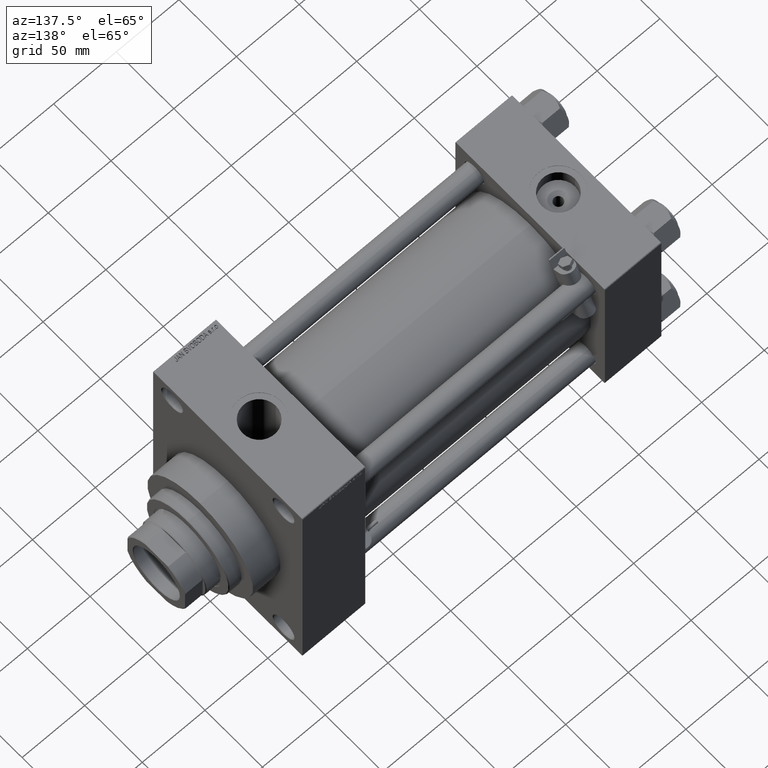
[diagram: clean part render]
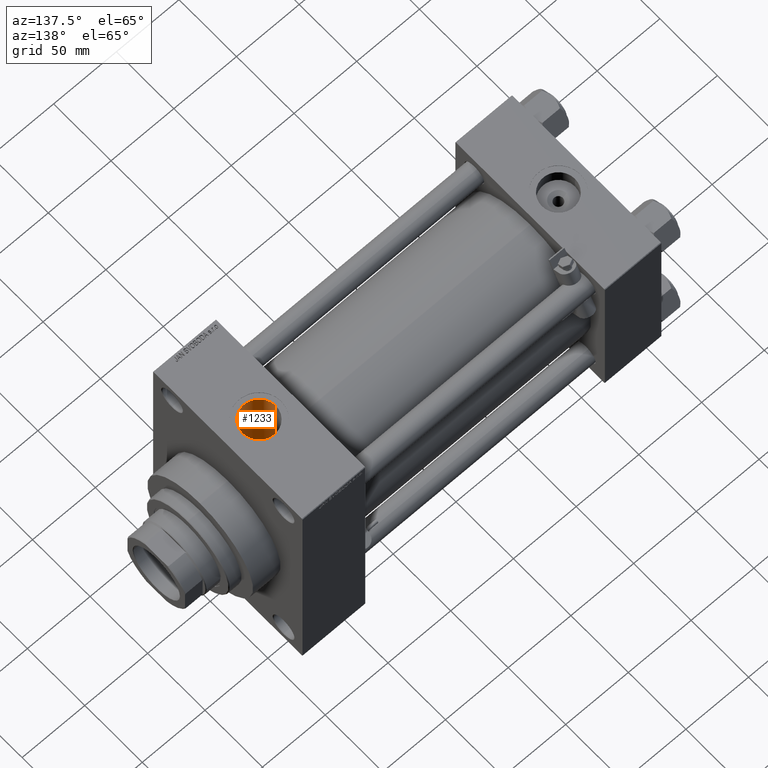
[diagram: same view with one face highlighted and labeled with its STEP entity id]
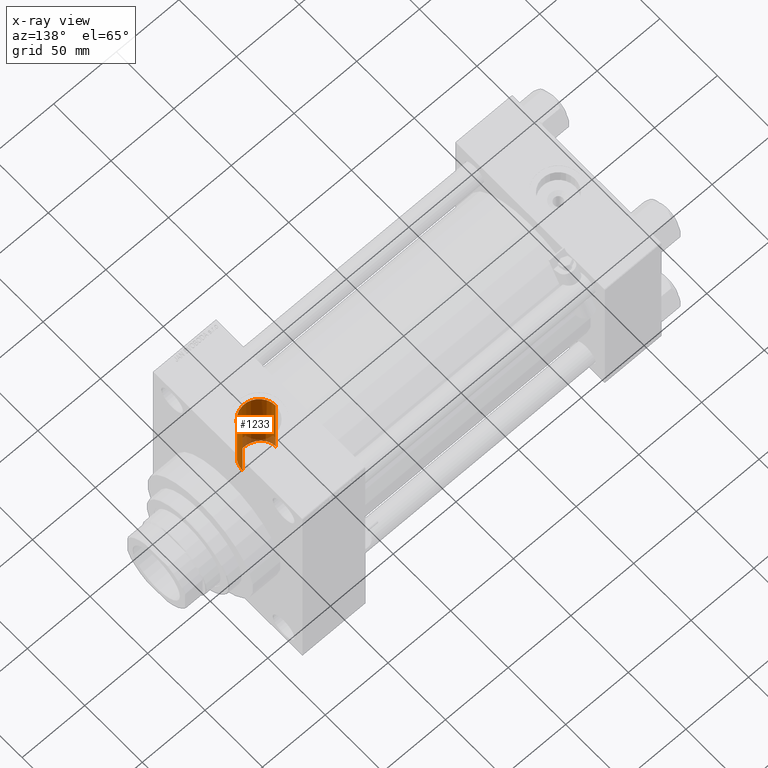
[diagram: x-ray of the same camera — body ghosted, the highlighted face saturated]
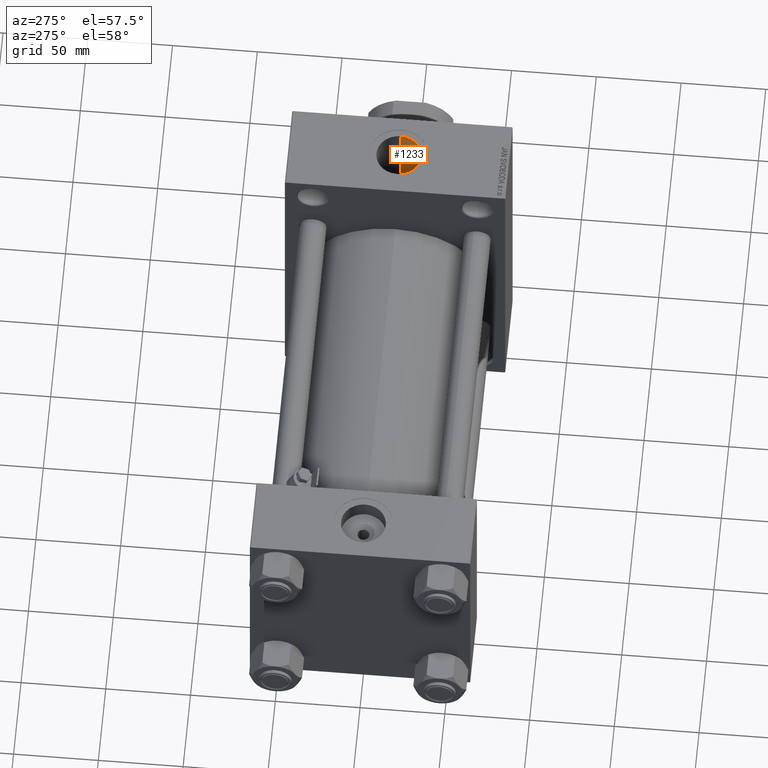
[diagram: same view with one face highlighted and labeled with its STEP entity id]
A machine part, auxiliary view. The second image highlights one B-rep face of the part: STEP entity #1233.
The next image is the same camera in x-ray: the body ghosted, the highlighted face saturated — about 10% of this face is hidden behind the body in this view.
A second angle (auxiliary view) of the same face is appended — the face is thin or edge-on in the first view.
In plain terms, the highlighted cylindrical surface (edge-blend (fillet) strip) has radius 13.22 mm, axis along (0, 0, -1).
Its self-contained STEP definition (entity closure, byte-faithful):
#163 = CARTESIAN_POINT ( 'NONE',  ( 253.8755652418721525, -11.18215487821174925, 36.32301804256497491 ) ) ;
#414 = CARTESIAN_POINT ( 'NONE',  ( 257.6246063200817389, -12.79204261344249005, 35.78252008287736174 ) ) ;
#1049 = EDGE_CURVE ( 'NONE', #10241, #21354, #22433, .T. ) ;
#1100 = AXIS2_PLACEMENT_3D ( 'NONE', #29241, #26264, #33428 ) ;
#1233 = ADVANCED_FACE ( 'NONE', ( #6767 ), #29478, .F. ) ;
#1682 = DIRECTION ( 'NONE',  ( 0.000000000000000000, 0.000000000000000000, -1.000000000000000000 ) ) ;
#2470 = CARTESIAN_POINT ( 'NONE',  ( 272.0015928053663288, -7.364010740346978778, 42.11487085516266404 ) ) ;
#3432 = CARTESIAN_POINT ( 'NONE',  ( 273.4260137807292494, -4.526382623994734011, 42.51103856060491637 ) ) ;
#3622 = VERTEX_POINT ( 'NONE', #22587 ) ;
#3941 = ORIENTED_EDGE ( 'NONE', *, *, #28686, .T. ) ;
#4098 = CARTESIAN_POINT ( 'NONE',  ( 258.1213861529209908, -12.91299555985391834, 35.73883275200965670 ) ) ;
#4350 = CARTESIAN_POINT ( 'NONE',  ( 259.1333413548220506, -13.09010442784176043, 35.67422447380826611 ) ) ;
#4588 = CARTESIAN_POINT ( 'NONE',  ( 247.9297342754260285, -2.050085931408931916, 37.94812610307854328 ) ) ;
#5367 = LINE ( 'NONE', #35494, #29458 ) ;
#6408 = CARTESIAN_POINT ( 'NONE',  ( 273.0198534454124228, -5.515287097378180015, 42.39402133541481987 ) ) ;
#6651 = CARTESIAN_POINT ( 'NONE',  ( 273.2993960643596552, -4.860054019011688986, 42.47412520213219267 ) ) ;
#6767 = FACE_OUTER_BOUND ( 'NONE', #36648, .T. ) ;
#7319 = CARTESIAN_POINT ( 'NONE',  ( 259.9061800254221453, -13.17721531947966440, 35.64212817518318133 ) ) ;
#7572 = CARTESIAN_POINT ( 'NONE',  ( 250.2318264884937946, -7.685914564966211948, 37.21712017253235416 ) ) ;
#7788 = ORIENTED_EDGE ( 'NONE', *, *, #43885, .T. ) ;
#7857 = CARTESIAN_POINT ( 'NONE',  ( 247.7800000000000296, 0.000000000000000000, 117.7999999999999545 ) ) ;
#8051 = CARTESIAN_POINT ( 'NONE',  ( 262.2184681352998155, -13.17368919937491967, 35.64343931497821671 ) ) ;
#8301 = CARTESIAN_POINT ( 'NONE',  ( 260.6814230918163844, -13.22630302104230182, 35.62395438639611456 ) ) ;
#10241 = VERTEX_POINT ( 'NONE', #35568 ) ;
#11263 = CARTESIAN_POINT ( 'NONE',  ( 251.1815366388300959, -8.866866661621763512, 36.95316935884812182 ) ) ;
#11938 = VECTOR ( 'NONE', #23150, 1000.000000000000000 ) ;
#12003 = CARTESIAN_POINT ( 'NONE',  ( 263.7396828457916058, -12.94319493727707204, 35.72789157605163979 ) ) ;
#12337 = VERTEX_POINT ( 'NONE', #16583 ) ;
#13287 = ORIENTED_EDGE ( 'NONE', *, *, #38605, .F. ) ;
#13833 = CARTESIAN_POINT ( 'NONE',  ( 265.4263400167578766, -12.47749807280258594, 40.88911195506442198 ) ) ;
#14065 = CARTESIAN_POINT ( 'NONE',  ( 274.2200000000000273, 5.235365066362919533E-15, 42.75000000000000000 ) ) ;
#14980 = CARTESIAN_POINT ( 'NONE',  ( 249.6733780949269885, -6.836262114151402614, 37.38252047338826145 ) ) ;
#16583 = CARTESIAN_POINT ( 'NONE',  ( 264.7399999999999523, -12.67993690836038212, 40.82623788692757216 ) ) ;
#17777 = CARTESIAN_POINT ( 'NONE',  ( 273.9325276923767092, -2.832175481623206093, 42.66183901135581635 ) ) ;
#18017 = CARTESIAN_POINT ( 'NONE',  ( 274.1041229325396102, -1.782171368608857165, 42.71427362908442404 ) ) ;
#18249 = CARTESIAN_POINT ( 'NONE',  ( 270.6852196200358094, -9.025364359016291971, 41.78941323369598138 ) ) ;
#18732 = DIRECTION ( 'NONE',  ( 0.000000000000000000, 0.000000000000000000, -1.000000000000000000 ) ) ;
#18814 = DIRECTION ( 'NONE',  ( 1.000000000000000000, 0.000000000000000000, 0.000000000000000000 ) ) ;
#19420 = CARTESIAN_POINT ( 'NONE',  ( 248.3777378405983711, -4.062146891642620439, 37.79554239058285248 ) ) ;
#19658 = CARTESIAN_POINT ( 'NONE',  ( 247.7800000000000296, -0.5124923440507880290, 38.00000000000000000 ) ) ;
#19685 = CARTESIAN_POINT ( 'NONE',  ( 264.7399999999999523, -12.67993690836038212, 117.7999999999999545 ) ) ;
#21354 = VERTEX_POINT ( 'NONE', #34011 ) ;
#21583 = ORIENTED_EDGE ( 'NONE', *, *, #1049, .F. ) ;
#22433 = LINE ( 'NONE', #7857, #46789 ) ;
#22587 = CARTESIAN_POINT ( 'NONE',  ( 274.2200000000000273, 1.618983068472796024E-15, 94.79999999999996874 ) ) ;
#22640 = CARTESIAN_POINT ( 'NONE',  ( 248.0208682072191664, -2.563995466671123769, 37.91671060019312023 ) ) ;
#22877 = ORIENTED_EDGE ( 'NONE', *, *, #27422, .T. ) ;
#22878 = CARTESIAN_POINT ( 'NONE',  ( 261.1955284908292469, -13.22847384726379261, 35.62314322171079084 ) ) ;
#23005 = DIRECTION ( 'NONE',  ( -0.000000000000000000, -0.000000000000000000, -1.000000000000000000 ) ) ;
#23122 = CARTESIAN_POINT ( 'NONE',  ( 264.2468141908902908, -12.82540410897823158, 35.77055802578576760 ) ) ;
#23150 = DIRECTION ( 'NONE',  ( -0.000000000000000000, -0.000000000000000000, 1.000000000000000000 ) ) ;
#23380 = CARTESIAN_POINT ( 'NONE',  ( 254.7505307718751624, -11.69499031497649000, 36.15822628461805976 ) ) ;
#24951 = CARTESIAN_POINT ( 'NONE',  ( 273.7629584476919149, -3.518170577613233263, 42.61034067485236676 ) ) ;
#25912 = CARTESIAN_POINT ( 'NONE',  ( 267.3650373963748166, -11.60846388096254600, 41.14496498017210513 ) ) ;
#26264 = DIRECTION ( 'NONE',  ( 0.000000000000000000, 0.000000000000000000, -1.000000000000000000 ) ) ;
#26343 = CARTESIAN_POINT ( 'NONE',  ( 259.6465934105189604, -13.15308097112493613, 35.65105309393388922 ) ) ;
#27078 = CARTESIAN_POINT ( 'NONE',  ( 250.5335653968728877, -8.091804117011159647, 37.13059057153027709 ) ) ;
#27422 = EDGE_CURVE ( 'NONE', #42364, #12337, #35672, .T. ) ;
#28686 = EDGE_CURVE ( 'NONE', #44136, #21354, #45084, .T. ) ;
#28864 = ORIENTED_EDGE ( 'NONE', *, *, #29356, .F. ) ;
#29117 = AXIS2_PLACEMENT_3D ( 'NONE', #41774, #23005, #18814 ) ;
#29241 = CARTESIAN_POINT ( 'NONE',  ( 261.0000000000000000, 0.000000000000000000, 117.7999999999999545 ) ) ;
#29356 = EDGE_CURVE ( 'NONE', #3622, #10241, #44846, .T. ) ;
#29458 = VECTOR ( 'NONE', #1682, 1000.000000000000000 ) ;
#29478 = CYLINDRICAL_SURFACE ( 'NONE', #1100, 13.21999999999998110 ) ;
#29613 = CARTESIAN_POINT ( 'NONE',  ( 269.1351602650894392, -10.44419664956255112, 41.45664902860857381 ) ) ;
#29852 = CARTESIAN_POINT ( 'NONE',  ( 274.2200000000000841, -0.3557163794469085372, 42.75000000000001421 ) ) ;
#30279 = CARTESIAN_POINT ( 'NONE',  ( 262.7273020000268957, -13.11672920664986108, 35.66454747468237940 ) ) ;
#30770 = CARTESIAN_POINT ( 'NONE',  ( 252.2661982700706176, -9.937219993078523217, 36.67946192170869324 ) ) ;
#31019 = CARTESIAN_POINT ( 'NONE',  ( 247.8096983583114934, -1.025007823581732369, 37.98963656081627249 ) ) ;
#33076 = CARTESIAN_POINT ( 'NONE',  ( 272.3763861193418734, -6.770732795594986086, 42.21512903942316086 ) ) ;
#33428 = DIRECTION ( 'NONE',  ( -1.000000000000000000, 0.000000000000000000, 0.000000000000000000 ) ) ;
#34011 = CARTESIAN_POINT ( 'NONE',  ( 247.7800000000000296, 4.670198142502455703E-15, 38.00000000000000000 ) ) ;
#34236 = CARTESIAN_POINT ( 'NONE',  ( 256.6470234235081307, -12.49324744184128555, 35.88793482582380534 ) ) ;
#34720 = CARTESIAN_POINT ( 'NONE',  ( 247.7800000000000296, 4.670198142502455703E-15, 38.00000000000000000 ) ) ;
#35432 = CARTESIAN_POINT ( 'NONE',  ( 264.7399999999999523, -12.67993690836039278, 35.82204907595320975 ) ) ;
#35494 = CARTESIAN_POINT ( 'NONE',  ( 274.2200000000000273, 1.618983068472799179E-15, 117.7999999999999545 ) ) ;
#35568 = CARTESIAN_POINT ( 'NONE',  ( 247.7800000000000296, 0.000000000000000000, 94.79999999999996874 ) ) ;
#35672 = B_SPLINE_CURVE_WITH_KNOTS ( 'NONE', 3,
 ( #44186, #29852, #37017, #48618, #18017, #17777, #24951, #3432, #6651, #6408, #40730, #33076, #2470, #36785, #18249, #40003, #29613, #36532, #25912, #44672, #13833, #43951 ),
 .UNSPECIFIED., .F., .F.,
 ( 4, 2, 2, 2, 2, 2, 2, 2, 2, 2, 4 ),
 ( 0.01702171439019720123, 0.01808348912762101218, 0.01914526386504482314, 0.02126881333989244505, 0.02233058807731628029, 0.02339236281474011553, 0.02551591228958786581, 0.02763946176443561609, 0.02976301123928336290, 0.03188656071413111665, 0.03401011018897886345 ),
 .UNSPECIFIED. ) ;
#36532 = CARTESIAN_POINT ( 'NONE',  ( 267.9822741085589541, -11.24766306689397233, 41.24590971077732604 ) ) ;
#36648 = EDGE_LOOP ( 'NONE', ( #28864, #7788, #22877, #13287, #3941, #21583 ) ) ;
#36785 = CARTESIAN_POINT ( 'NONE',  ( 271.1575723231069901, -8.490431257591527725, 41.90230994099356110 ) ) ;
#37017 = CARTESIAN_POINT ( 'NONE',  ( 274.2055487969409455, -0.7143419376948682009, 42.74552439370961565 ) ) ;
#37444 = CARTESIAN_POINT ( 'NONE',  ( 248.7266675305090473, -5.017990412168527037, 37.67859395355886676 ) ) ;
#38426 = CARTESIAN_POINT ( 'NONE',  ( 251.5277665390036077, -9.236039579220985729, 36.86226852688236022 ) ) ;
#38605 = EDGE_CURVE ( 'NONE', #44136, #12337, #41912, .T. ) ;
#40003 = CARTESIAN_POINT ( 'NONE',  ( 269.6754924569603418, -9.999825575006543232, 41.56700312386078622 ) ) ;
#40730 = CARTESIAN_POINT ( 'NONE',  ( 272.8678695714943387, -5.834913689629351197, 42.35109966501106271 ) ) ;
#41400 = CARTESIAN_POINT ( 'NONE',  ( 256.1651837322211804, -12.31495098171281199, 35.94981938685187117 ) ) ;
#41644 = CARTESIAN_POINT ( 'NONE',  ( 249.4152396125651023, -6.389315783911302837, 37.46185808708514031 ) ) ;
#41774 = CARTESIAN_POINT ( 'NONE',  ( 261.0000000000000000, 0.000000000000000000, 94.79999999999996874 ) ) ;
#41883 = CARTESIAN_POINT ( 'NONE',  ( 264.7399999999999523, -12.67993690836039278, 35.82204907595320975 ) ) ;
#41912 = LINE ( 'NONE', #19685, #11938 ) ;
#42364 = VERTEX_POINT ( 'NONE', #14065 ) ;
#43885 = EDGE_CURVE ( 'NONE', #3622, #42364, #5367, .T. ) ;
#43951 = CARTESIAN_POINT ( 'NONE',  ( 264.7399999999999523, -12.67993690836038212, 40.82623788692757216 ) ) ;
#44136 = VERTEX_POINT ( 'NONE', #35432 ) ;
#44186 = CARTESIAN_POINT ( 'NONE',  ( 274.2200000000000273, 5.235365066362919533E-15, 42.75000000000000000 ) ) ;
#44672 = CARTESIAN_POINT ( 'NONE',  ( 266.0881855045063844, -12.22213168823644658, 40.96686556097022702 ) ) ;
#44846 = CIRCLE ( 'NONE', #29117, 13.22000000000000952 ) ;
#45084 = B_SPLINE_CURVE_WITH_KNOTS ( 'NONE', 3,
 ( #41883, #23122, #12003, #30279, #8051, #22878, #8301, #7319, #26343, #4350, #45835, #4098, #414, #34236, #41400, #23380, #163, #45594, #30770, #38426, #11263, #27078, #7572, #14980, #41644, #37444, #19420, #22640, #4588, #31019, #19658, #34720 ),
 .UNSPECIFIED., .F., .F.,
 ( 4, 2, 2, 2, 2, 2, 2, 2, 2, 2, 2, 2, 2, 2, 2, 4 ),
 ( 0.01705422015311721523, 0.01859208991726057220, 0.02012995968140392916, 0.02166782944554728613, 0.02243676432761904441, 0.02320569920969080269, 0.02474356897383448925, 0.02628143873797817234, 0.02935717826626538934, 0.03089504803040899611, 0.03243291779455260287, 0.03397078755869621658, 0.03550865732283982334, 0.03858439685112707157, 0.04012226661527069915, 0.04166013637941432673 ),
 .UNSPECIFIED. ) ;
#45594 = CARTESIAN_POINT ( 'NONE',  ( 252.6581883585389789, -10.26839900491646951, 36.58771021444268712 ) ) ;
#45835 = CARTESIAN_POINT ( 'NONE',  ( 258.8788164647796748, -13.05123934391902907, 35.68847932861488204 ) ) ;
#46789 = VECTOR ( 'NONE', #18732, 1000.000000000000000 ) ;
#48618 = CARTESIAN_POINT ( 'NONE',  ( 274.1474619350562989, -1.428652546488347719, 42.72761509841832606 ) ) ;